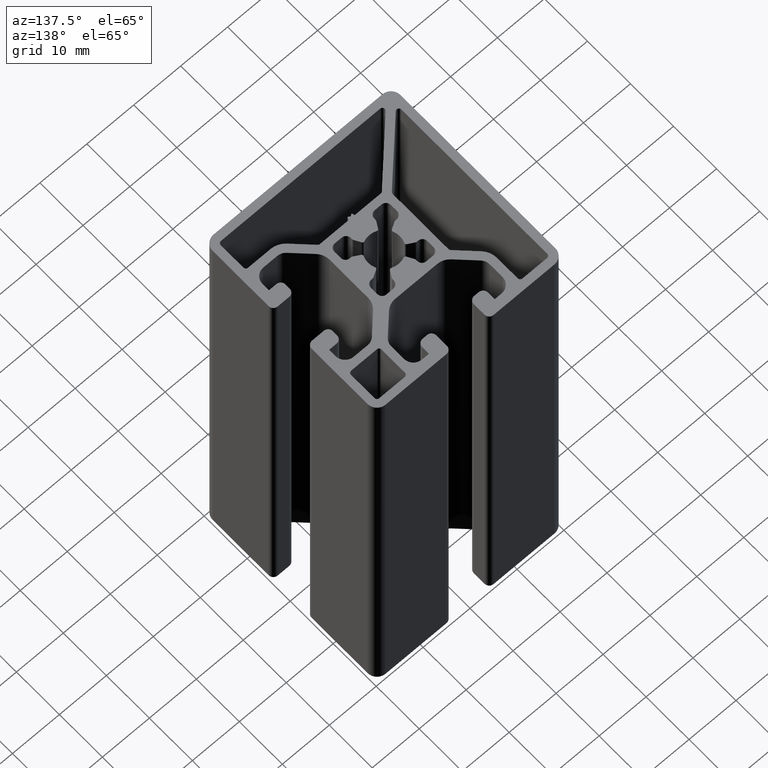
[diagram: clean part render]
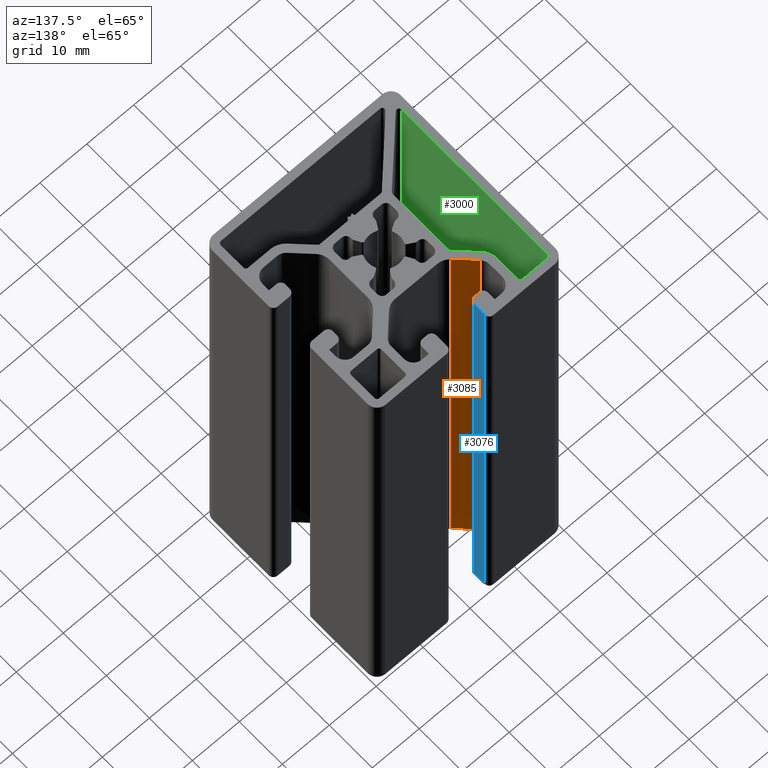
[diagram: same view with three faces highlighted in distinct colors, each labeled with its STEP entity id]
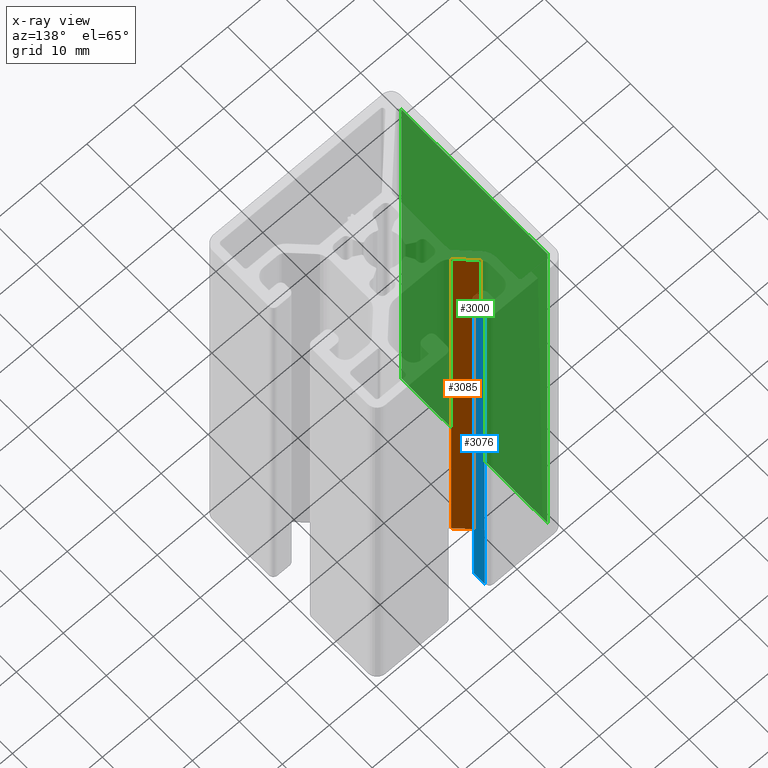
[diagram: x-ray of the same camera — body ghosted, the three highlighted faces saturated]
A machine part, auxiliary view with three faces highlighted in distinct colors.
The next image is the same camera in x-ray (body ghosted, the three faces saturated) — at least one of them is partly hidden behind the body in this view.
Their STEP definitions:

[orange] entity #3085 — the highlighted planar face has unit normal (-0.7071, -0.7071, 0).
#73=PLANE('',#3352);
#206=FACE_OUTER_BOUND('',#363,.T.);
#363=EDGE_LOOP('',(#2389,#2390,#2391,#2392));
#629=LINE('',#5019,#938);
#630=LINE('',#5023,#939);
#631=LINE('',#5025,#940);
#632=LINE('',#5026,#941);
#938=VECTOR('',#4082,100.);
#939=VECTOR('',#4087,4.67157287525383);
#940=VECTOR('',#4088,100.);
#941=VECTOR('',#4089,4.67157287525383);
#1408=VERTEX_POINT('',#5016);
#1409=VERTEX_POINT('',#5018);
#1410=VERTEX_POINT('',#5022);
#1411=VERTEX_POINT('',#5024);
#1820=EDGE_CURVE('',#1409,#1408,#629,.T.);
#1822=EDGE_CURVE('',#1410,#1408,#630,.T.);
#1823=EDGE_CURVE('',#1411,#1410,#631,.T.);
#1824=EDGE_CURVE('',#1409,#1411,#632,.T.);
#2389=ORIENTED_EDGE('',*,*,#1822,.F.);
#2390=ORIENTED_EDGE('',*,*,#1823,.F.);
#2391=ORIENTED_EDGE('',*,*,#1824,.F.);
#2392=ORIENTED_EDGE('',*,*,#1820,.T.);
#3085=ADVANCED_FACE('',(#206),#73,.F.);
#3352=AXIS2_PLACEMENT_3D('',#5021,#4085,#4086);
#4082=DIRECTION('',(0.,0.,1.));
#4085=DIRECTION('center_axis',(-0.707106781186547,-0.707106781186548,0.));
#4086=DIRECTION('ref_axis',(0.707106781186548,-0.707106781186547,0.));
#4087=DIRECTION('',(-0.707106781186548,0.707106781186547,0.));
#4088=DIRECTION('',(0.,0.,1.));
#4089=DIRECTION('',(0.707106781186548,-0.707106781186547,0.));
#5016=CARTESIAN_POINT('',(-9.9142005623731,11.6819805153395,100.));
#5018=CARTESIAN_POINT('',(-9.9142005623731,11.6819805153395,0.));
#5019=CARTESIAN_POINT('',(-9.9142005623731,11.6819805153395,0.));
#5021=CARTESIAN_POINT('Origin',(-9.9142005623731,11.6819805153395,0.));
#5022=CARTESIAN_POINT('',(-6.61089970347398,8.37867965644034,100.));
#5023=CARTESIAN_POINT('',(-4.51515529294496,6.28293524591132,100.));
#5024=CARTESIAN_POINT('',(-6.61089970347398,8.37867965644034,0.));
#5025=CARTESIAN_POINT('',(-6.61089970347398,8.37867965644034,0.));
#5026=CARTESIAN_POINT('',(-4.51515529294496,6.28293524591132,0.));

[blue] entity #3076 — the highlighted planar face has unit normal (-1, 0, 0).
#68=PLANE('',#3335);
#197=FACE_OUTER_BOUND('',#354,.T.);
#354=EDGE_LOOP('',(#2353,#2354,#2355,#2356));
#609=LINE('',#4963,#918);
#611=LINE('',#4969,#920);
#612=LINE('',#4971,#921);
#613=LINE('',#4972,#922);
#918=VECTOR('',#4028,100.);
#920=VECTOR('',#4034,2.49999999999999);
#921=VECTOR('',#4035,100.);
#922=VECTOR('',#4036,2.49999999999999);
#1388=VERTEX_POINT('',#4959);
#1390=VERTEX_POINT('',#4962);
#1392=VERTEX_POINT('',#4968);
#1393=VERTEX_POINT('',#4970);
#1792=EDGE_CURVE('',#1390,#1388,#609,.T.);
#1795=EDGE_CURVE('',#1392,#1388,#611,.T.);
#1796=EDGE_CURVE('',#1393,#1392,#612,.T.);
#1797=EDGE_CURVE('',#1390,#1393,#613,.T.);
#2353=ORIENTED_EDGE('',*,*,#1795,.F.);
#2354=ORIENTED_EDGE('',*,*,#1796,.F.);
#2355=ORIENTED_EDGE('',*,*,#1797,.F.);
#2356=ORIENTED_EDGE('',*,*,#1792,.T.);
#3076=ADVANCED_FACE('',(#197),#68,.F.);
#3335=AXIS2_PLACEMENT_3D('',#4967,#4032,#4033);
#4028=DIRECTION('',(0.,0.,1.));
#4032=DIRECTION('center_axis',(-1.,1.77635683940026E-15,0.));
#4033=DIRECTION('ref_axis',(-1.77635683940025E-15,-1.,0.));
#4034=DIRECTION('',(1.77635683940026E-15,1.,0.));
#4035=DIRECTION('',(0.,0.,1.));
#4036=DIRECTION('',(-1.77635683940026E-15,-1.,0.));
#4959=CARTESIAN_POINT('',(-3.99998699999999,19.,100.));
#4962=CARTESIAN_POINT('',(-3.99998699999999,19.,0.));
#4963=CARTESIAN_POINT('',(-3.99998699999999,19.,0.));
#4967=CARTESIAN_POINT('Origin',(-3.99998699999999,19.,0.));
#4968=CARTESIAN_POINT('',(-3.999987,16.5,100.));
#4969=CARTESIAN_POINT('',(-3.99998700000001,9.49999999999999,100.));
#4970=CARTESIAN_POINT('',(-3.999987,16.5,0.));
#4971=CARTESIAN_POINT('',(-3.999987,16.5,0.));
#4972=CARTESIAN_POINT('',(-3.99998700000001,9.49999999999999,0.));

[green] entity #3000 — the highlighted planar face has unit normal (-1, 0, 0).
#34=PLANE('',#3175);
#121=FACE_OUTER_BOUND('',#278,.T.);
#278=EDGE_LOOP('',(#2049,#2050,#2051,#2052));
#465=LINE('',#4508,#774);
#466=LINE('',#4510,#775);
#467=LINE('',#4512,#776);
#468=LINE('',#4513,#777);
#774=VECTOR('',#3568,33.961522368915);
#775=VECTOR('',#3569,100.);
#776=VECTOR('',#3570,33.961522368915);
#777=VECTOR('',#3571,100.);
#1236=VERTEX_POINT('',#4506);
#1237=VERTEX_POINT('',#4507);
#1238=VERTEX_POINT('',#4509);
#1239=VERTEX_POINT('',#4511);
#1565=EDGE_CURVE('',#1236,#1237,#465,.T.);
#1566=EDGE_CURVE('',#1238,#1236,#466,.T.);
#1567=EDGE_CURVE('',#1239,#1238,#467,.T.);
#1568=EDGE_CURVE('',#1239,#1237,#468,.T.);
#2049=ORIENTED_EDGE('',*,*,#1565,.F.);
#2050=ORIENTED_EDGE('',*,*,#1566,.F.);
#2051=ORIENTED_EDGE('',*,*,#1567,.F.);
#2052=ORIENTED_EDGE('',*,*,#1568,.T.);
#3000=ADVANCED_FACE('',(#121),#34,.F.);
#3175=AXIS2_PLACEMENT_3D('',#4505,#3566,#3567);
#3566=DIRECTION('center_axis',(-1.,6.53812283539648E-17,0.));
#3567=DIRECTION('ref_axis',(0.,-1.,0.));
#3568=DIRECTION('',(6.53812283539648E-17,1.,0.));
#3569=DIRECTION('',(0.,0.,1.));
#3570=DIRECTION('',(-6.53812283539648E-17,-1.,0.));
#3571=DIRECTION('',(0.,0.,1.));
#4505=CARTESIAN_POINT('Origin',(-18.399987,17.9,0.));
#4506=CARTESIAN_POINT('',(-18.399987,-16.061522368915,100.));
#4507=CARTESIAN_POINT('',(-18.399987,17.9,100.));
#4508=CARTESIAN_POINT('',(-18.399987,8.95,100.));
#4509=CARTESIAN_POINT('',(-18.399987,-16.061522368915,0.));
#4510=CARTESIAN_POINT('',(-18.399987,-16.061522368915,0.));
#4511=CARTESIAN_POINT('',(-18.399987,17.9,0.));
#4512=CARTESIAN_POINT('',(-18.399987,8.95,0.));
#4513=CARTESIAN_POINT('',(-18.399987,17.9,0.));